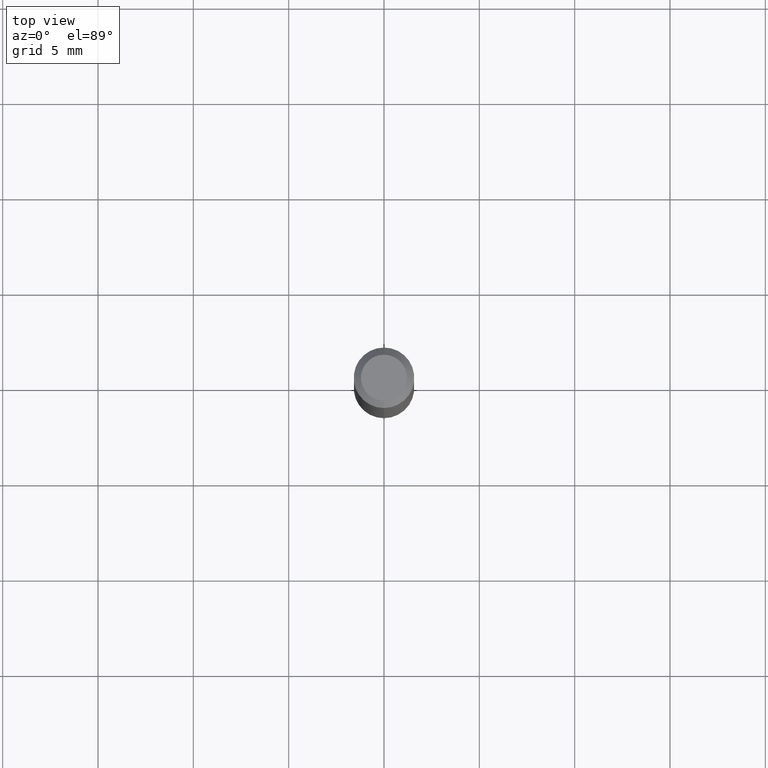
[diagram: clean part render]
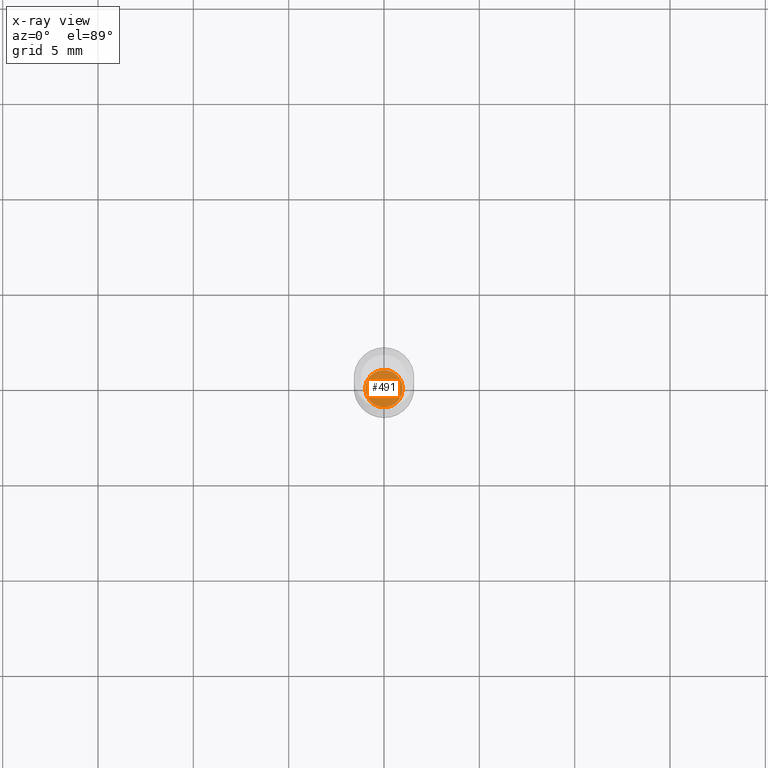
[diagram: x-ray — body ghosted, one internal face saturated and labeled with its STEP entity id]
A machine part, top view, then the same camera in x-ray: the body is ghosted and one INTERNAL B-rep face — a face not visible from any outside direction — is saturated and labeled: STEP entity #491.
In plain terms, the highlighted planar face has unit normal (-0, 0, 1).
Its self-contained STEP definition (entity closure, byte-faithful):
#19 = VERTEX_POINT ( 'NONE', #455 ) ;
#88 = EDGE_LOOP ( 'NONE', ( #378, #171 ) ) ;
#96 = DIRECTION ( 'NONE',  ( -6.982962677686265133E-15, -1.000000000000000000, 0.000000000000000000 ) ) ;
#107 = PLANE ( 'NONE',  #490 ) ;
#111 = CIRCLE ( 'NONE', #194, 0.03855000000000000093 ) ;
#141 = DIRECTION ( 'NONE',  ( -2.445435285253421028E-29, 3.491529342725254773E-15, 1.000000000000000000 ) ) ;
#171 = ORIENTED_EDGE ( 'NONE', *, *, #304, .F. ) ;
#187 = VERTEX_POINT ( 'NONE', #506 ) ;
#194 = AXIS2_PLACEMENT_3D ( 'NONE', #324, #281, #96 ) ;
#263 = DIRECTION ( 'NONE',  ( -2.445435285253421308E-29, 3.491529342725255167E-15, 1.000000000000000000 ) ) ;
#266 = CARTESIAN_POINT ( 'NONE',  ( 3.210856529537742007E-29, -4.584378026998260520E-15, -1.313000000000000167 ) ) ;
#281 = DIRECTION ( 'NONE',  ( -2.445435285253421308E-29, 3.491529342725255167E-15, 1.000000000000000000 ) ) ;
#304 = EDGE_CURVE ( 'NONE', #187, #19, #111, .T. ) ;
#314 = CIRCLE ( 'NONE', #475, 0.03855000000000000093 ) ;
#324 = CARTESIAN_POINT ( 'NONE',  ( 3.210856529537742007E-29, -4.584378026998260520E-15, -1.313000000000000167 ) ) ;
#345 = CARTESIAN_POINT ( 'NONE',  ( 3.210856529537742007E-29, -4.584378026998260520E-15, -1.313000000000000167 ) ) ;
#349 = DIRECTION ( 'NONE',  ( -6.982962677686265133E-15, -1.000000000000000000, 0.000000000000000000 ) ) ;
#378 = ORIENTED_EDGE ( 'NONE', *, *, #498, .F. ) ;
#427 = DIRECTION ( 'NONE',  ( -6.982962677686265922E-15, -1.000000000000000000, 3.491529342725254773E-15 ) ) ;
#455 = CARTESIAN_POINT ( 'NONE',  ( -2.691932112247734171E-16, -0.03855000000000458060, -1.313000000000000167 ) ) ;
#459 = FACE_OUTER_BOUND ( 'NONE', #88, .T. ) ;
#475 = AXIS2_PLACEMENT_3D ( 'NONE', #345, #263, #349 ) ;
#490 = AXIS2_PLACEMENT_3D ( 'NONE', #266, #141, #427 ) ;
#491 = ADVANCED_FACE ( 'NONE', ( #459 ), #107, .F. ) ;
#498 = EDGE_CURVE ( 'NONE', #19, #187, #314, .T. ) ;
#506 = CARTESIAN_POINT ( 'NONE',  ( 2.756905814749505827E-16, 0.03854999999999541432, -1.313000000000000167 ) ) ;